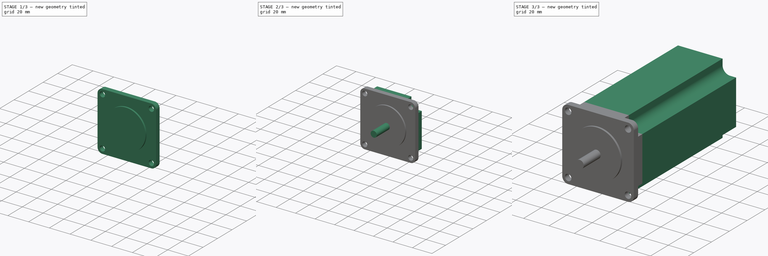
[diagram: build sequence overview — one tinted view per stage of 3, left to right]
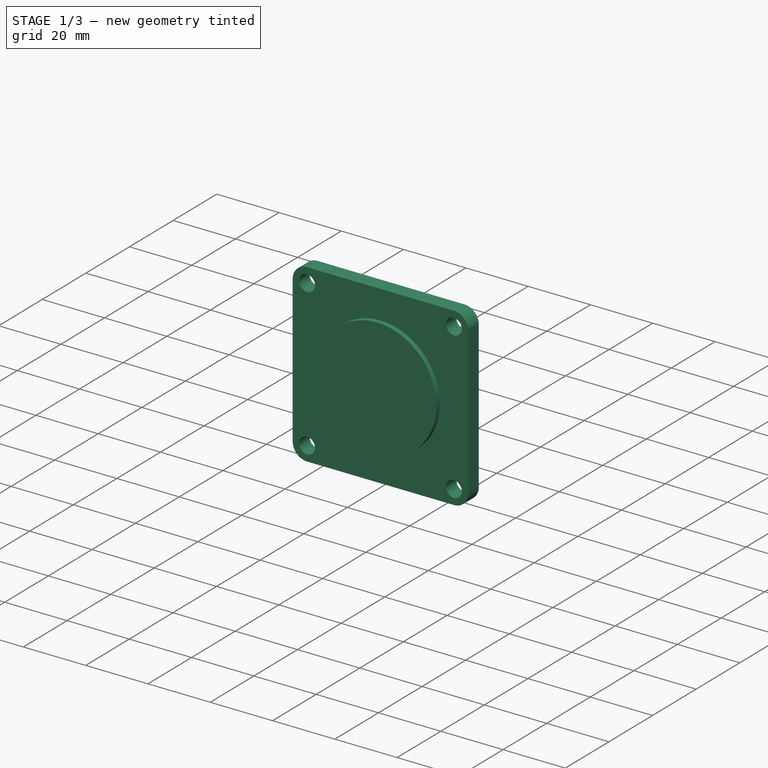
[diagram: stage 1 of 3 — iso view after this stage's code; geometry added in this stage tinted green]
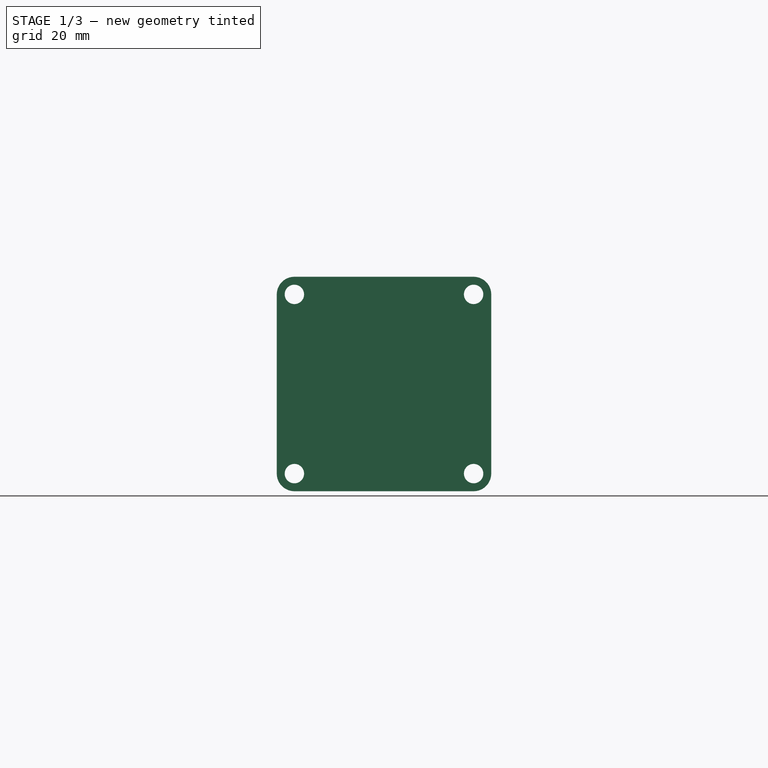
[diagram: stage 1 of 3 — front view after this stage's code; geometry added in this stage tinted green]
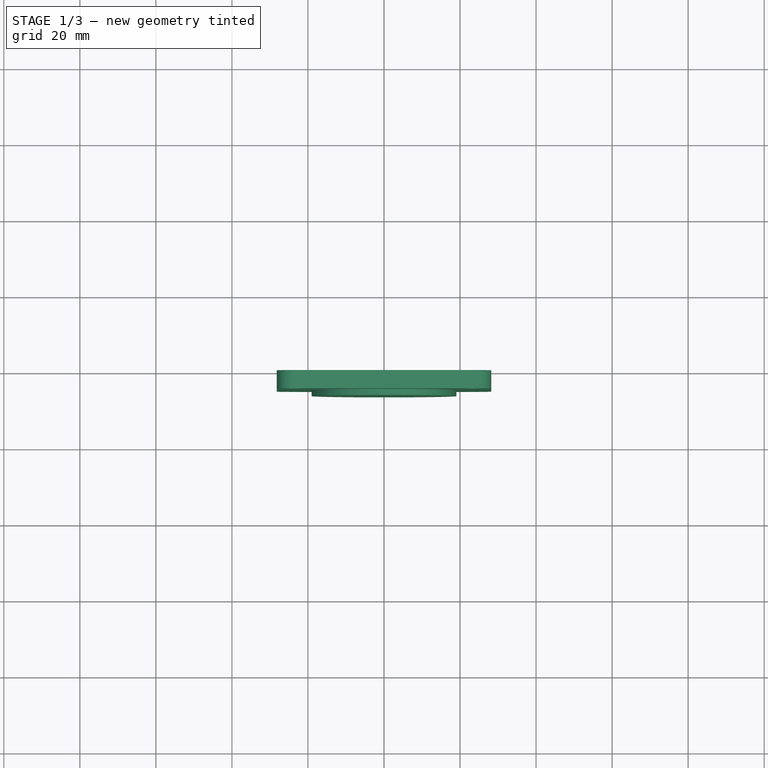
[diagram: stage 1 of 3 — top view after this stage's code; geometry added in this stage tinted green]
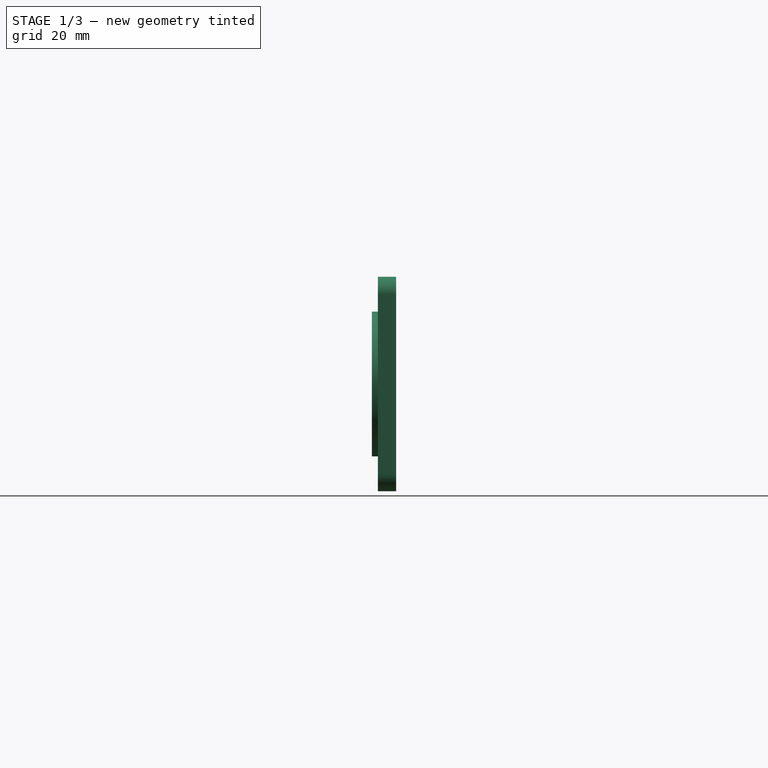
[diagram: stage 1 of 3 — right view after this stage's code; geometry added in this stage tinted green]
FCSTD DOCUMENT  (FreeCAD 0.16R5558 (Git))
Label: 57BYGH115-stepper-motor
License: All rights reserved
LicenseURL: http://en.wikipedia.org/wiki/All_rights_reserved
objects: Sketcher::SketchObject×6, PartDesign::Pad×6
note: 18 computed .brp shape members not serialized (recipe doc carries the construction recipe); baked Part::Feature solids carry a one-line shape summary decoded from their .brp

FEATURE [Sketcher::SketchObject] Sketch
  Placement = pos=(0,0,0) rot=(1,0,0;1.5708rad)
  sketch-geometry (12):
    g0: ArcOfCircle CenterX=-23.57 CenterY=23.57 CenterZ=0 NormalX=0 NormalY=0 NormalZ=1 Radius=4.63001 StartAngle=1.5708 EndAngle=3.14159
    g1: ArcOfCircle CenterX=23.57 CenterY=23.57 CenterZ=0 NormalX=0 NormalY=0 NormalZ=1 Radius=4.63001 StartAngle=6.28318 EndAngle=7.85398
    g2: ArcOfCircle CenterX=-23.57 CenterY=-23.57 CenterZ=0 NormalX=0 NormalY=0 NormalZ=1 Radius=4.63001 StartAngle=3.14159 EndAngle=4.71239
    g3: ArcOfCircle CenterX=23.57 CenterY=-23.57 CenterZ=0 NormalX=0 NormalY=0 NormalZ=1 Radius=4.63001 StartAngle=4.71239 EndAngle=6.28319
    g4: LineSegment StartX=-28.2 StartY=23.57 StartZ=0 EndX=-28.2 EndY=-23.57 EndZ=0
    g5: LineSegment StartX=-23.57 StartY=28.2 StartZ=0 EndX=23.57 EndY=28.2 EndZ=0
    g6: LineSegment StartX=28.2 StartY=23.57 StartZ=0 EndX=28.2 EndY=-23.57 EndZ=0
    g7: LineSegment StartX=-23.57 StartY=-28.2 StartZ=0 EndX=23.57 EndY=-28.2 EndZ=0
    g8: Circle CenterX=-23.57 CenterY=23.57 CenterZ=0 NormalX=0 NormalY=0 NormalZ=1 Radius=2.55
    g9: Circle CenterX=23.57 CenterY=23.57 CenterZ=0 NormalX=0 NormalY=0 NormalZ=1 Radius=2.55
    g10: Circle CenterX=23.57 CenterY=-23.57 CenterZ=0 NormalX=0 NormalY=0 NormalZ=1 Radius=2.55
    g11: Circle CenterX=-23.57 CenterY=-23.57 CenterZ=0 NormalX=0 NormalY=0 NormalZ=1 Radius=2.55
  constraints (36):
    c: Equal(g0,g1)
    c: Equal(g1,g3)
    c: Equal(g3,g2)
    c: Symmetric(g2,g3,g-2)
    c: Horizontal(g5)
    c: Vertical(g6)
    c: Horizontal(g7)
    c: Vertical(g4)
    c: Coincident(g0,g4)
    c: Coincident(g2,g4)
    c: Coincident(g0,g5)
    c: Coincident(g1,g5)
    c: Coincident(g6,g1)
    c: Coincident(g3,g6)
    c: Coincident(g7,g3)
    c: Equal(g4,g5)
    c: Equal(g5,g6)
    c: Equal(g7,g6)
    c: Coincident(g2,g7)
    c: Tangent(g2,g7)
    c: Tangent(g4,g0)
    c: Tangent(g5,g1)
    c: Tangent(g6,g1)
    c: Tangent(g0,g5)
    c: Tangent(g3,g6)
    c: DistanceX(g0,g1) = 56.4
    c: Symmetric(g0,g2,g-1)
    c: Coincident(g2,g11)
    c: Coincident(g8,g0)
    c: Coincident(g9,g1)
    c: Coincident(g3,g10)
    c: Equal(g8,g9)
    c: Equal(g9,g10)
    c: Equal(g10,g11)
    c: Radius(g10) = 2.55
    c: DistanceY(g1,g3) = -47.14
FEATURE [PartDesign::Pad] Pad
  Length = 4.8
  Length2 = 100
  Placement = pos=(0,0,0) rot=(1,0,0;1.5708rad)
  Sketch = -> Sketch
  Type = 0
FEATURE [Sketcher::SketchObject] Sketch001
  Placement = pos=(0,-4.8,0) rot=(1,0,0;1.5708rad)
  Support = -> Pad [Face14]
  sketch-geometry (1):
    g0: Circle CenterX=0 CenterY=0 CenterZ=0 NormalX=0 NormalY=0 NormalZ=1 Radius=19.05
  constraints (2):
    c: Coincident(g-1,g0)
    c: Radius(g0) = 19.05
FEATURE [PartDesign::Pad] Pad001
  Length = 1.6
  Length2 = 100
  Placement = pos=(0,0,0) rot=(1,0,0;1.5708rad)
  Sketch = -> Sketch001
  Type = 0
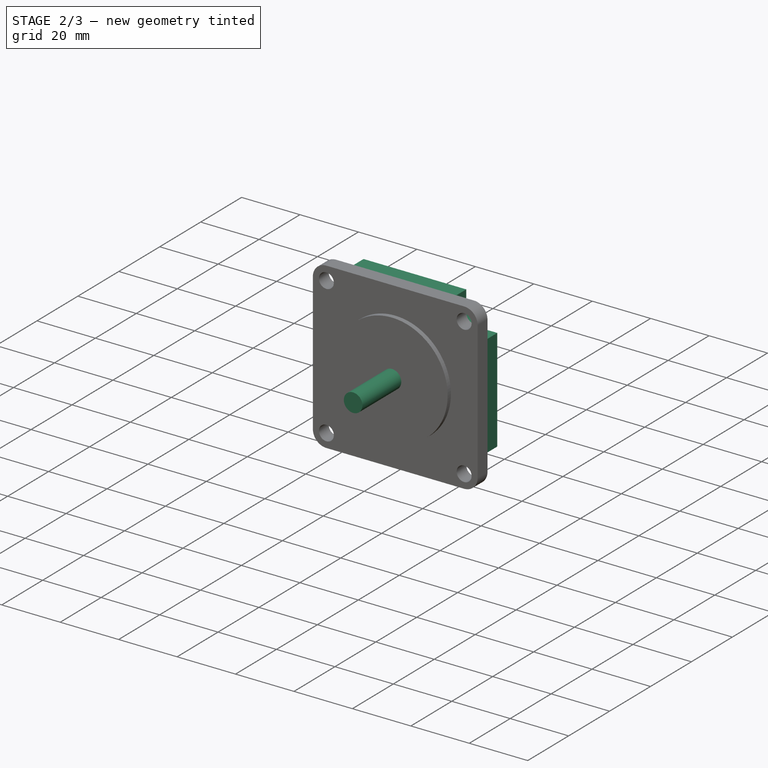
[diagram: stage 2 of 3 — iso view after this stage's code; geometry added in this stage tinted green]
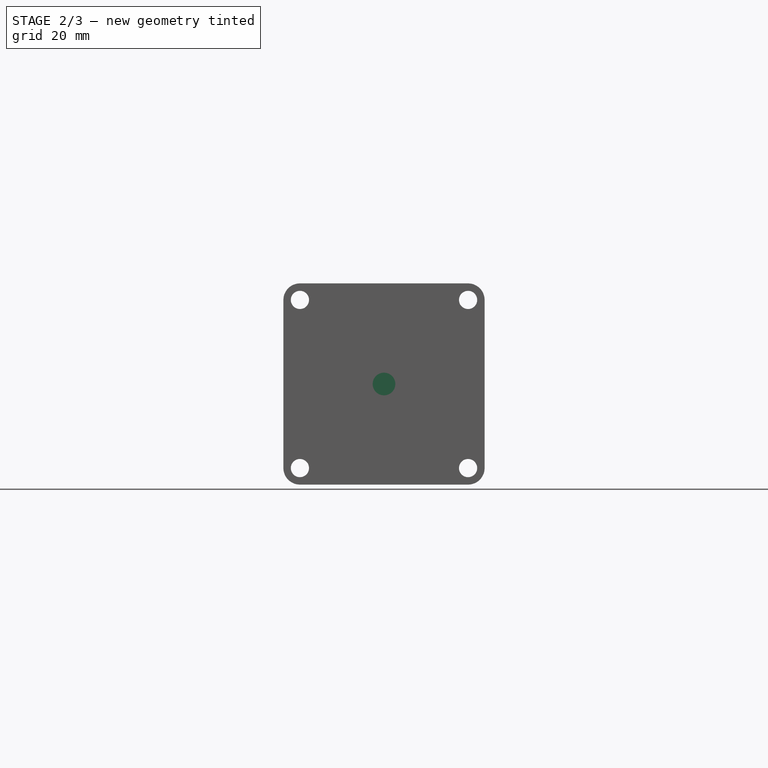
[diagram: stage 2 of 3 — front view after this stage's code; geometry added in this stage tinted green]
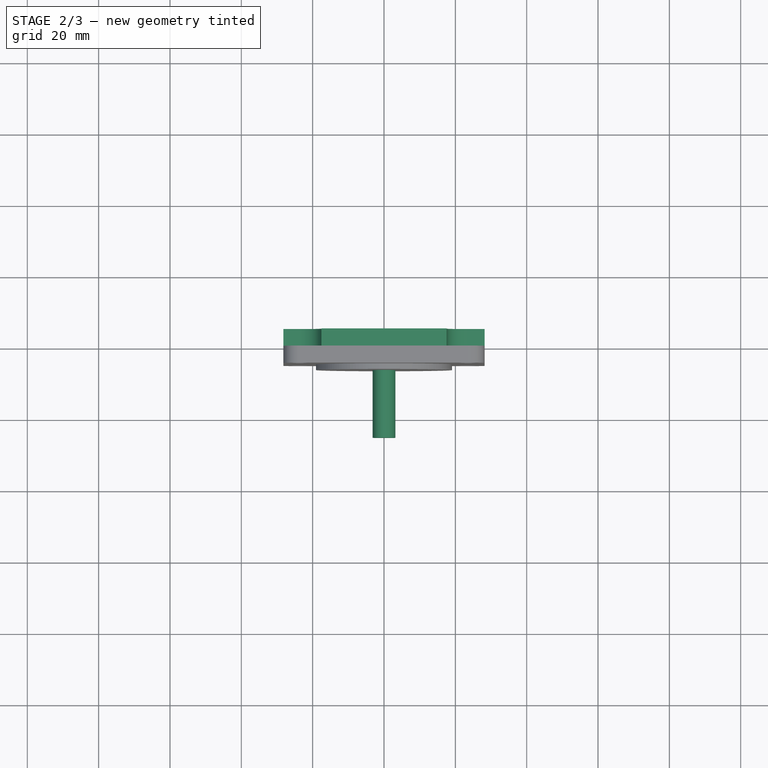
[diagram: stage 2 of 3 — top view after this stage's code; geometry added in this stage tinted green]
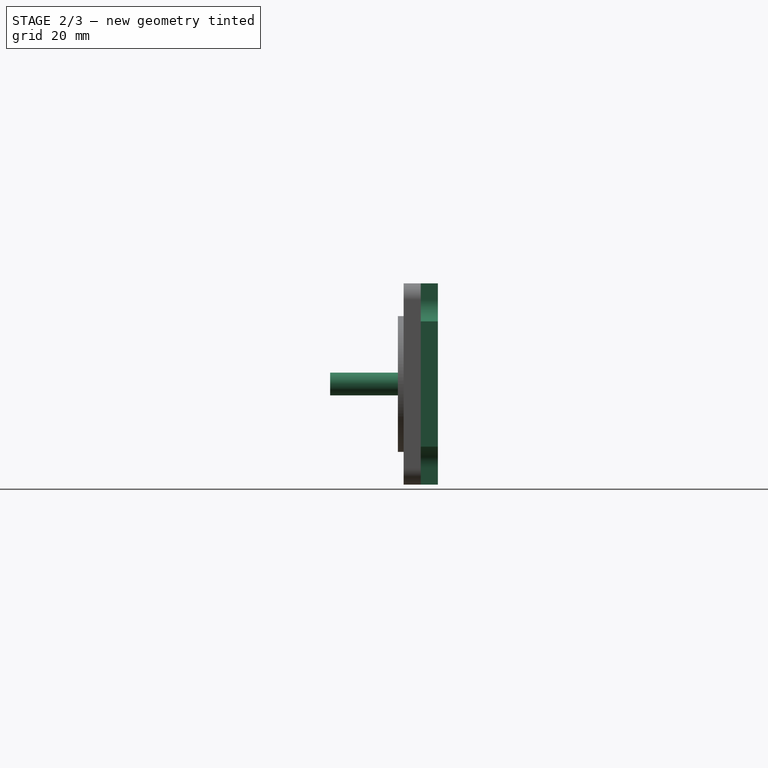
[diagram: stage 2 of 3 — right view after this stage's code; geometry added in this stage tinted green]
FEATURE [Sketcher::SketchObject] Sketch002
  Placement = pos=(0,-6.4,0) rot=(1,0,0;1.5708rad)
  Support = -> Pad001 [Face16]
  sketch-geometry (1):
    g0: Circle CenterX=0 CenterY=0 CenterZ=0 NormalX=0 NormalY=0 NormalZ=1 Radius=3.175
  constraints (2):
    c: Coincident(g-1,g0)
    c: Radius(g0) = 3.175
FEATURE [PartDesign::Pad] Pad002
  Length = 19
  Length2 = 100
  Placement = pos=(0,0,0) rot=(1,0,0;1.5708rad)
  Sketch = -> Sketch002
  Type = 0
FEATURE [Sketcher::SketchObject] Sketch003
  Placement = pos=(0,0,0) rot=(-1,0,0;1.5708rad)
  Support = -> Pad002 [Face4]
  sketch-geometry (16):
    g0: ArcOfCircle CenterX=-23.57 CenterY=23.57 CenterZ=0 NormalX=0 NormalY=0 NormalZ=1 Radius=6 StartAngle=4.71239 EndAngle=6.28319
    g1: ArcOfCircle CenterX=23.57 CenterY=23.57 CenterZ=0 NormalX=0 NormalY=0 NormalZ=1 Radius=6 StartAngle=3.1416 EndAngle=4.71239
    g2: ArcOfCircle CenterX=23.57 CenterY=-23.57 CenterZ=0 NormalX=0 NormalY=0 NormalZ=1 Radius=6 StartAngle=1.57079 EndAngle=3.14159
    g3: ArcOfCircle CenterX=-23.57 CenterY=-23.57 CenterZ=0 NormalX=0 NormalY=0 NormalZ=1 Radius=6 StartAngle=6.28319 EndAngle=7.85398
    g4: LineSegment StartX=-17.57 StartY=23.57 StartZ=0 EndX=-17.57 EndY=28.2 EndZ=0
    g5: LineSegment StartX=-17.57 StartY=28.2 StartZ=0 EndX=17.57 EndY=28.2 EndZ=0
    g6: LineSegment StartX=17.57 StartY=28.2 StartZ=0 EndX=17.57 EndY=23.57 EndZ=0
    g7: LineSegment StartX=23.57 StartY=17.57 StartZ=0 EndX=28.2 EndY=17.57 EndZ=0
    g8: LineSegment StartX=28.2 StartY=17.57 StartZ=0 EndX=28.2 EndY=-17.57 EndZ=0
    g9: LineSegment StartX=28.2 StartY=-17.57 StartZ=0 EndX=23.57 EndY=-17.57 EndZ=0
    g10: LineSegment StartX=-17.57 StartY=-23.57 StartZ=0 EndX=-17.57 EndY=-28.2 EndZ=0
    g11: LineSegment StartX=-17.57 StartY=-28.2 StartZ=0 EndX=17.57 EndY=-28.2 EndZ=0
    g12: LineSegment StartX=17.57 StartY=-28.2 StartZ=0 EndX=17.57 EndY=-23.57 EndZ=0
    g13: LineSegment StartX=-23.57 StartY=17.57 StartZ=0 EndX=-28.2 EndY=17.57 EndZ=0
    g14: LineSegment StartX=-28.2 StartY=17.57 StartZ=0 EndX=-28.2 EndY=-17.57 EndZ=0
    g15: LineSegment StartX=-28.2 StartY=-17.57 StartZ=0 EndX=-23.57 EndY=-17.57 EndZ=0
  constraints (48):
    c: Coincident(g4,g5)
    c: Horizontal(g5)
    c: Coincident(g5,g6)
    c: Vertical(g6)
    c: Coincident(g7,g8)
    c: Vertical(g8)
    c: Coincident(g8,g9)
    c: Horizontal(g9)
    c: Coincident(g10,g11)
    c: Horizontal(g11)
    c: Coincident(g11,g12)
    c: Coincident(g13,g14)
    c: Vertical(g14)
    c: Coincident(g14,g15)
    c: Coincident(g0,g13)
    c: Coincident(g0,g4)
    c: Coincident(g1,g6)
    c: Coincident(g1,g7)
    c: Coincident(g2,g9)
    c: Coincident(g2,g12)
    c: Coincident(g10,g3)
    c: Coincident(g15,g3)
    c: Horizontal(g15)
    c: Vertical(g10)
    c: Vertical(g12)
    c: Horizontal(g7)
    c: Vertical(g4)
    c: Horizontal(g13)
    c: DistanceX(g14,g8) = 56.4
    c: Symmetric(g8,g14,g-2)
    c: Symmetric(g5,g11,g-1)
    c: DistanceY(g11,g5) = 56.4
    c: Tangent(g13,g0)
    c: Tangent(g1,g7)
    c: Tangent(g9,g2)
    c: Tangent(g15,g3)
    c: Equal(g3,g0)
    c: Equal(g0,g1)
    c: Equal(g1,g2)
    c: Symmetric(g1,g0,g-2)
    c: DistanceX(g1,g0) = -47.14
    c: DistanceY(g3,g0) = 47.14
    c: Radius(g3) = 6
    c: Symmetric(g3,g2,g-2)
    c: Symmetric(g3,g0,g-1)
    c: Angle(g3) = 1.5708
    c: Angle(g0) = 1.5708
    c: Angle(g2) = 1.5708
FEATURE [PartDesign::Pad] Pad003
  Length = 4.8
  Length2 = 100
  Placement = pos=(0,0,0) rot=(1,0,0;1.5708rad)
  Sketch = -> Sketch003
  Type = 0
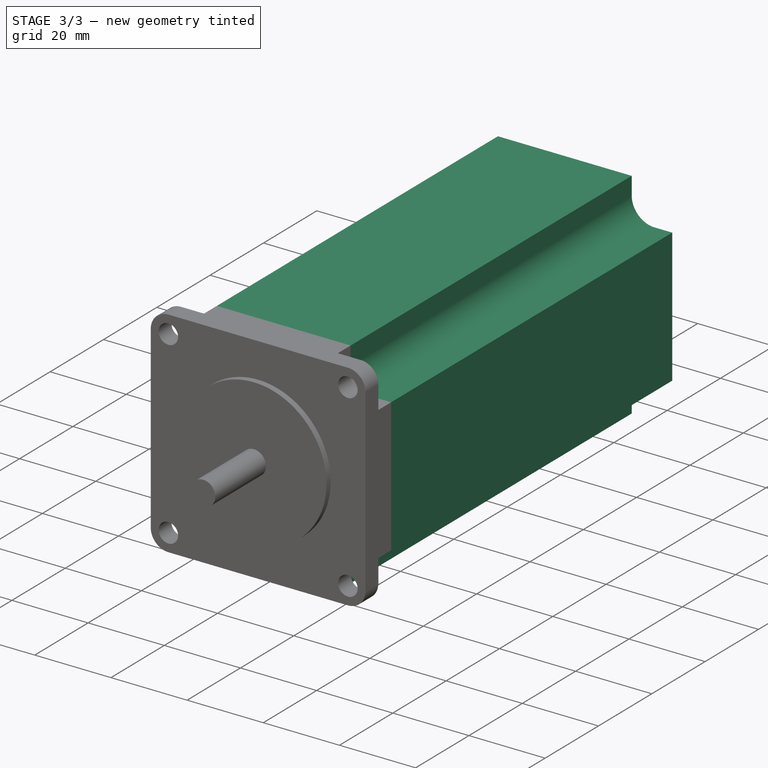
[diagram: stage 3 of 3 — iso view after this stage's code; geometry added in this stage tinted green]
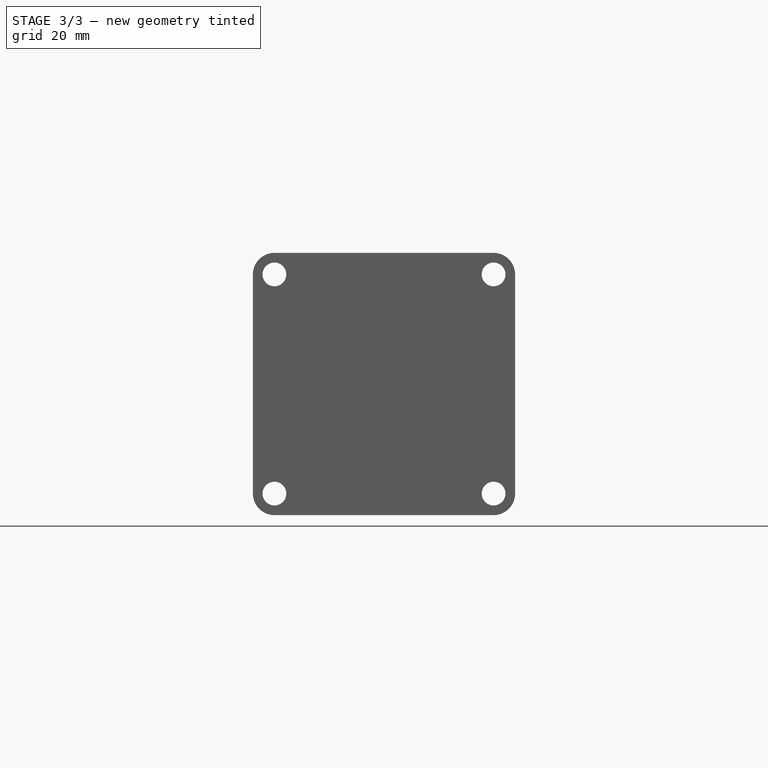
[diagram: stage 3 of 3 — front view after this stage's code; geometry added in this stage tinted green]
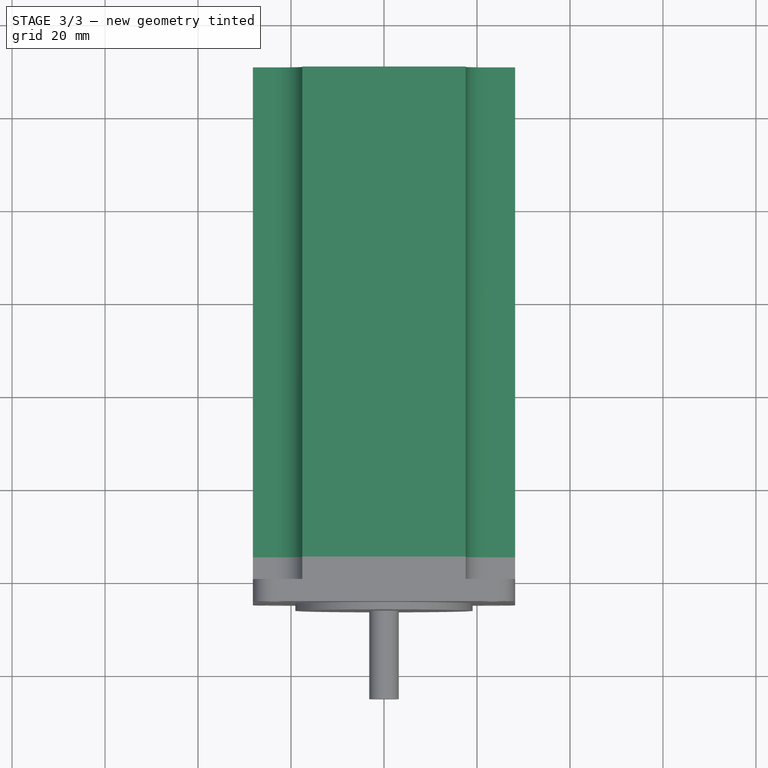
[diagram: stage 3 of 3 — top view after this stage's code; geometry added in this stage tinted green]
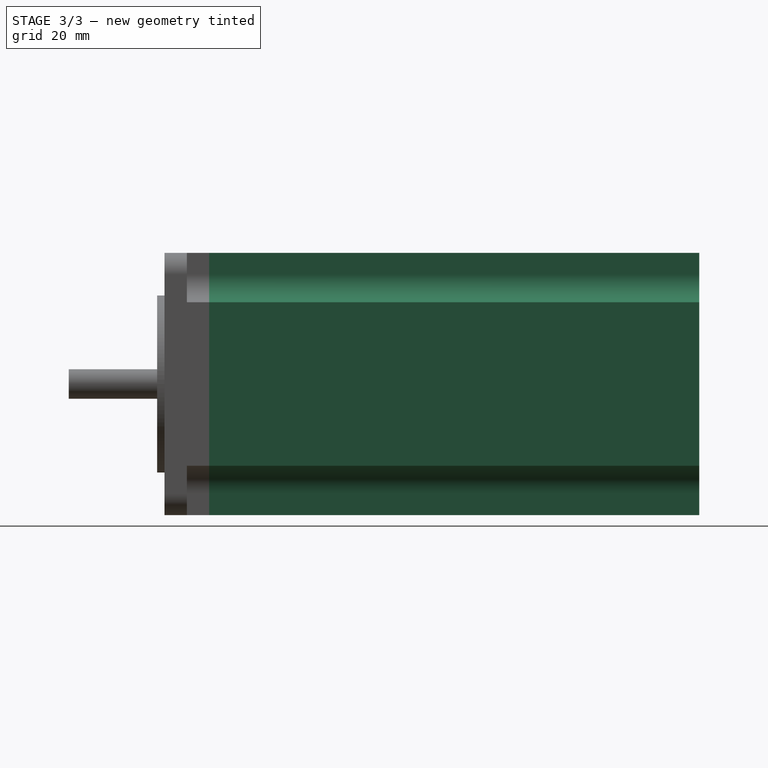
[diagram: stage 3 of 3 — right view after this stage's code; geometry added in this stage tinted green]
FEATURE [Sketcher::SketchObject] Sketch004
  Placement = pos=(0,4.8,0) rot=(-1,0,0;1.5708rad)
  Support = -> Pad003 [Face32]
  sketch-geometry (16):
    g0: ArcOfCircle CenterX=-23.57 CenterY=23.57 CenterZ=0 NormalX=0 NormalY=0 NormalZ=1 Radius=6 StartAngle=4.71239 EndAngle=6.28319
    g1: ArcOfCircle CenterX=23.57 CenterY=23.57 CenterZ=0 NormalX=0 NormalY=0 NormalZ=1 Radius=6 StartAngle=3.1416 EndAngle=4.71239
    g2: ArcOfCircle CenterX=23.57 CenterY=-23.57 CenterZ=0 NormalX=0 NormalY=0 NormalZ=1 Radius=6 StartAngle=1.57079 EndAngle=3.14159
    g3: ArcOfCircle CenterX=-23.57 CenterY=-23.57 CenterZ=0 NormalX=0 NormalY=0 NormalZ=1 Radius=6 StartAngle=6.28319 EndAngle=7.85398
    g4: LineSegment StartX=-17.57 StartY=23.57 StartZ=0 EndX=-17.57 EndY=28.2 EndZ=0
    g5: LineSegment StartX=-17.57 StartY=28.2 StartZ=0 EndX=17.57 EndY=28.2 EndZ=0
    g6: LineSegment StartX=17.57 StartY=28.2 StartZ=0 EndX=17.57 EndY=23.57 EndZ=0
    g7: LineSegment StartX=23.57 StartY=17.57 StartZ=0 EndX=28.2 EndY=17.57 EndZ=0
    g8: LineSegment StartX=28.2 StartY=17.57 StartZ=0 EndX=28.2 EndY=-17.57 EndZ=0
    g9: LineSegment StartX=28.2 StartY=-17.57 StartZ=0 EndX=23.57 EndY=-17.57 EndZ=0
    g10: LineSegment StartX=-17.57 StartY=-23.57 StartZ=0 EndX=-17.57 EndY=-28.2 EndZ=0
    g11: LineSegment StartX=-17.57 StartY=-28.2 StartZ=0 EndX=17.57 EndY=-28.2 EndZ=0
    g12: LineSegment StartX=17.57 StartY=-28.2 StartZ=0 EndX=17.57 EndY=-23.57 EndZ=0
    g13: LineSegment StartX=-23.57 StartY=17.57 StartZ=0 EndX=-28.2 EndY=17.57 EndZ=0
    g14: LineSegment StartX=-28.2 StartY=17.57 StartZ=0 EndX=-28.2 EndY=-17.57 EndZ=0
    g15: LineSegment StartX=-28.2 StartY=-17.57 StartZ=0 EndX=-23.57 EndY=-17.57 EndZ=0
  constraints (48):
    c: Coincident(g4,g5)
    c: Horizontal(g5)
    c: Coincident(g5,g6)
    c: Vertical(g6)
    c: Coincident(g7,g8)
    c: Vertical(g8)
    c: Coincident(g8,g9)
    c: Horizontal(g9)
    c: Coincident(g10,g11)
    c: Horizontal(g11)
    c: Coincident(g11,g12)
    c: Coincident(g13,g14)
    c: Vertical(g14)
    c: Coincident(g14,g15)
    c: Coincident(g0,g13)
    c: Coincident(g0,g4)
    c: Coincident(g1,g6)
    c: Coincident(g1,g7)
    c: Coincident(g2,g9)
    c: Coincident(g2,g12)
    c: Coincident(g10,g3)
    c: Coincident(g15,g3)
    c: Horizontal(g15)
    c: Vertical(g10)
    c: Vertical(g12)
    c: Horizontal(g7)
    c: Vertical(g4)
    c: Horizontal(g13)
    c: DistanceX(g14,g8) = 56.4
    c: Symmetric(g8,g14,g-2)
    c: Symmetric(g5,g11,g-1)
    c: DistanceY(g11,g5) = 56.4
    c: Tangent(g13,g0)
    c: Tangent(g1,g7)
    c: Tangent(g9,g2)
    c: Tangent(g15,g3)
    c: Equal(g3,g0)
    c: Equal(g0,g1)
    c: Equal(g1,g2)
    c: Symmetric(g1,g0,g-2)
    c: DistanceX(g1,g0) = -47.14
    c: DistanceY(g3,g0) = 47.14
    c: Radius(g3) = 6
    c: Symmetric(g3,g2,g-2)
    c: Symmetric(g3,g0,g-1)
    c: Angle(g3) = 1.5708
    c: Angle(g0) = 1.5708
    c: Angle(g2) = 1.5708
FEATURE [PartDesign::Pad] Pad004
  Length = 95.8
  Length2 = 100
  Placement = pos=(0,0,0) rot=(1,0,0;1.5708rad)
  Sketch = -> Sketch004
  Type = 0
FEATURE [Sketcher::SketchObject] Sketch005
  Placement = pos=(0,100.6,0) rot=(-1,0,0;1.5708rad)
  Support = -> Pad004 [Face49]
  sketch-geometry (16):
    g0: ArcOfCircle CenterX=-23.57 CenterY=23.57 CenterZ=0 NormalX=0 NormalY=0 NormalZ=1 Radius=6 StartAngle=4.71239 EndAngle=6.28319
    g1: ArcOfCircle CenterX=23.57 CenterY=23.57 CenterZ=0 NormalX=0 NormalY=0 NormalZ=1 Radius=6 StartAngle=3.1416 EndAngle=4.71239
    g2: ArcOfCircle CenterX=23.57 CenterY=-23.57 CenterZ=0 NormalX=0 NormalY=0 NormalZ=1 Radius=6 StartAngle=1.57079 EndAngle=3.14159
    g3: ArcOfCircle CenterX=-23.57 CenterY=-23.57 CenterZ=0 NormalX=0 NormalY=0 NormalZ=1 Radius=6 StartAngle=6.28319 EndAngle=7.85398
    g4: LineSegment StartX=-17.57 StartY=23.57 StartZ=0 EndX=-17.57 EndY=28.2 EndZ=0
    g5: LineSegment StartX=-17.57 StartY=28.2 StartZ=0 EndX=17.57 EndY=28.2 EndZ=0
    g6: LineSegment StartX=17.57 StartY=28.2 StartZ=0 EndX=17.57 EndY=23.57 EndZ=0
    g7: LineSegment StartX=23.57 StartY=17.57 StartZ=0 EndX=28.2 EndY=17.57 EndZ=0
    g8: LineSegment StartX=28.2 StartY=17.57 StartZ=0 EndX=28.2 EndY=-17.57 EndZ=0
    g9: LineSegment StartX=28.2 StartY=-17.57 StartZ=0 EndX=23.57 EndY=-17.57 EndZ=0
    g10: LineSegment StartX=-17.57 StartY=-23.57 StartZ=0 EndX=-17.57 EndY=-28.2 EndZ=0
    g11: LineSegment StartX=-17.57 StartY=-28.2 StartZ=0 EndX=17.57 EndY=-28.2 EndZ=0
    g12: LineSegment StartX=17.57 StartY=-28.2 StartZ=0 EndX=17.57 EndY=-23.57 EndZ=0
    g13: LineSegment StartX=-23.57 StartY=17.57 StartZ=0 EndX=-28.2 EndY=17.57 EndZ=0
    g14: LineSegment StartX=-28.2 StartY=17.57 StartZ=0 EndX=-28.2 EndY=-17.57 EndZ=0
    g15: LineSegment StartX=-28.2 StartY=-17.57 StartZ=0 EndX=-23.57 EndY=-17.57 EndZ=0
  constraints (48):
    c: Coincident(g4,g5)
    c: Horizontal(g5)
    c: Coincident(g5,g6)
    c: Vertical(g6)
    c: Coincident(g7,g8)
    c: Vertical(g8)
    c: Coincident(g8,g9)
    c: Horizontal(g9)
    c: Coincident(g10,g11)
    c: Horizontal(g11)
    c: Coincident(g11,g12)
    c: Coincident(g13,g14)
    c: Vertical(g14)
    c: Coincident(g14,g15)
    c: Coincident(g0,g13)
    c: Coincident(g0,g4)
    c: Coincident(g1,g6)
    c: Coincident(g1,g7)
    c: Coincident(g2,g9)
    c: Coincident(g2,g12)
    c: Coincident(g10,g3)
    c: Coincident(g15,g3)
    c: Horizontal(g15)
    c: Vertical(g10)
    c: Vertical(g12)
    c: Horizontal(g7)
    c: Vertical(g4)
    c: Horizontal(g13)
    c: DistanceX(g14,g8) = 56.4
    c: Symmetric(g8,g14,g-2)
    c: Symmetric(g5,g11,g-1)
    c: DistanceY(g11,g5) = 56.4
    c: Tangent(g13,g0)
    c: Tangent(g1,g7)
    c: Tangent(g9,g2)
    c: Tangent(g15,g3)
    c: Equal(g3,g0)
    c: Equal(g0,g1)
    c: Equal(g1,g2)
    c: Symmetric(g1,g0,g-2)
    c: DistanceX(g1,g0) = -47.14
    c: DistanceY(g3,g0) = 47.14
    c: Radius(g3) = 6
    c: Symmetric(g3,g2,g-2)
    c: Symmetric(g3,g0,g-1)
    c: Angle(g3) = 1.5708
    c: Angle(g0) = 1.5708
    c: Angle(g2) = 1.5708
FEATURE [PartDesign::Pad] Pad005
  Length = 9.6
  Length2 = 100
  Placement = pos=(0,0,0) rot=(1,0,0;1.5708rad)
  Sketch = -> Sketch005
  Type = 0
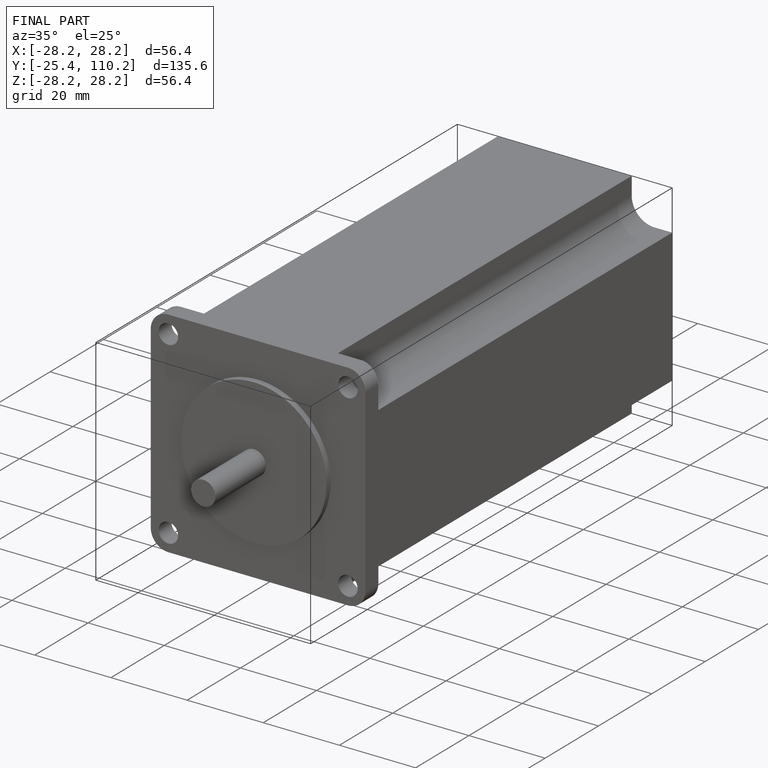
[diagram: finished part — iso view with bounding-box wireframe]
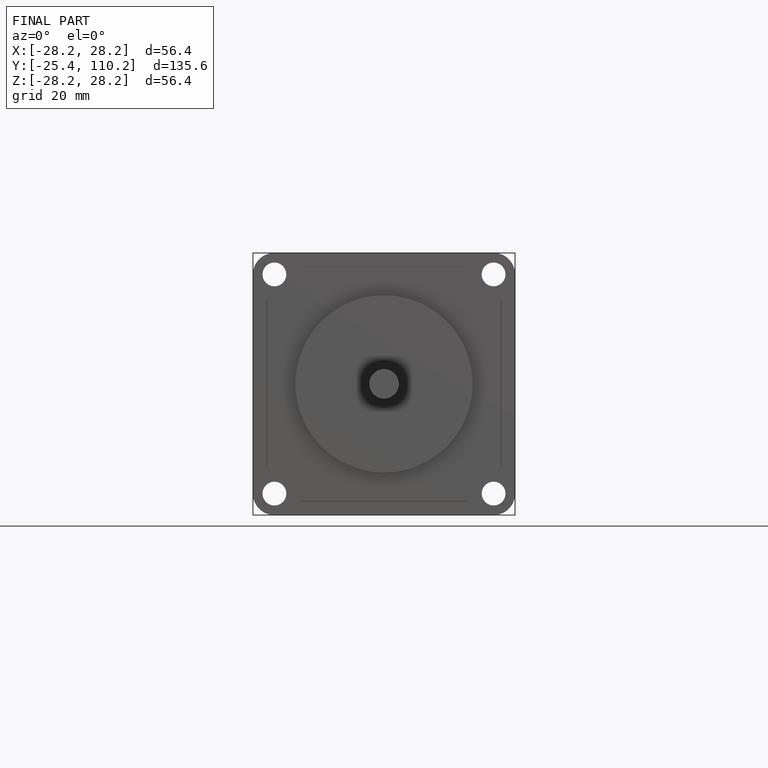
[diagram: finished part — front view with bounding-box wireframe]
